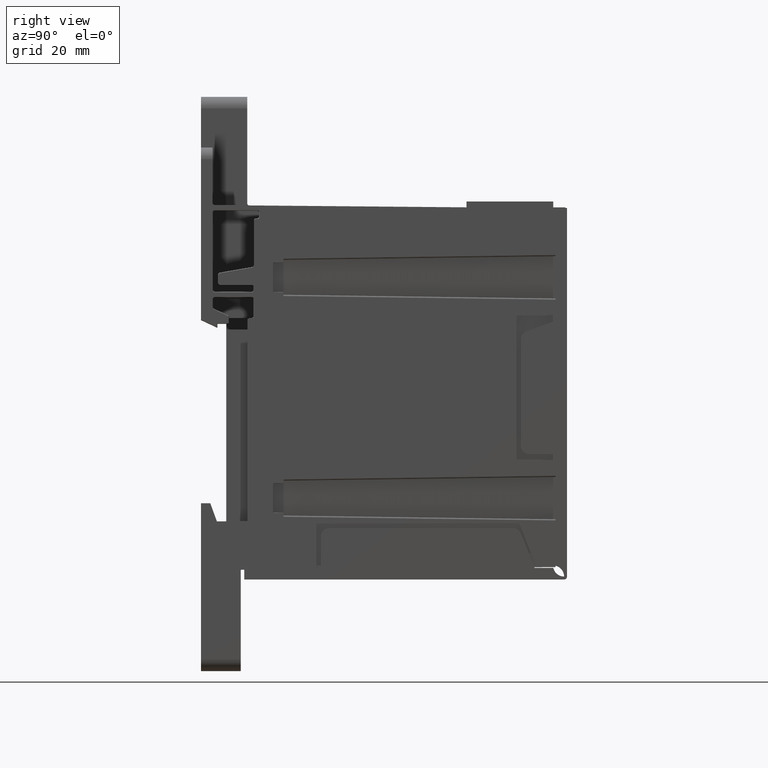
[diagram: clean part render]
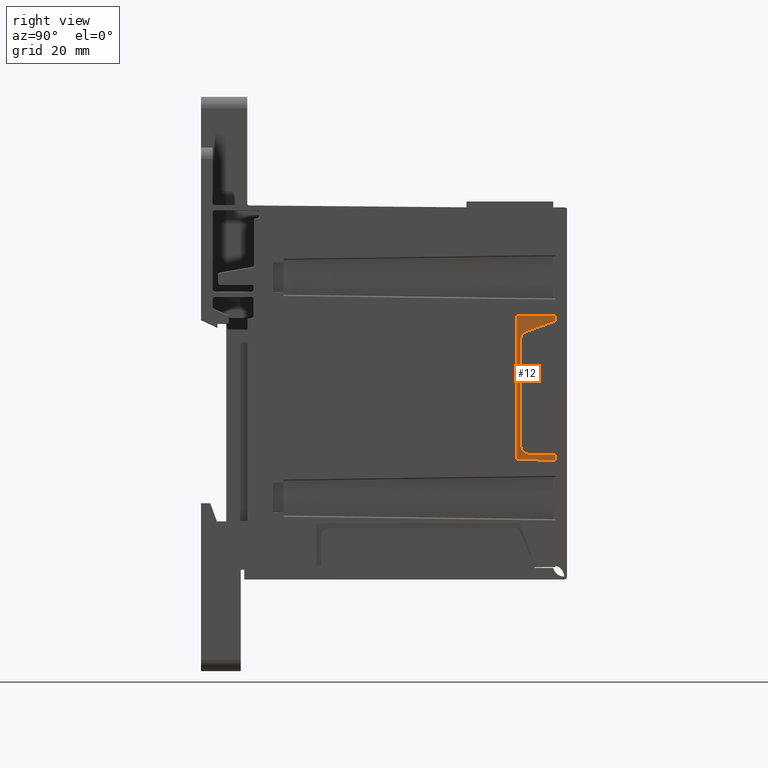
[diagram: same view with one face highlighted and labeled with its STEP entity id]
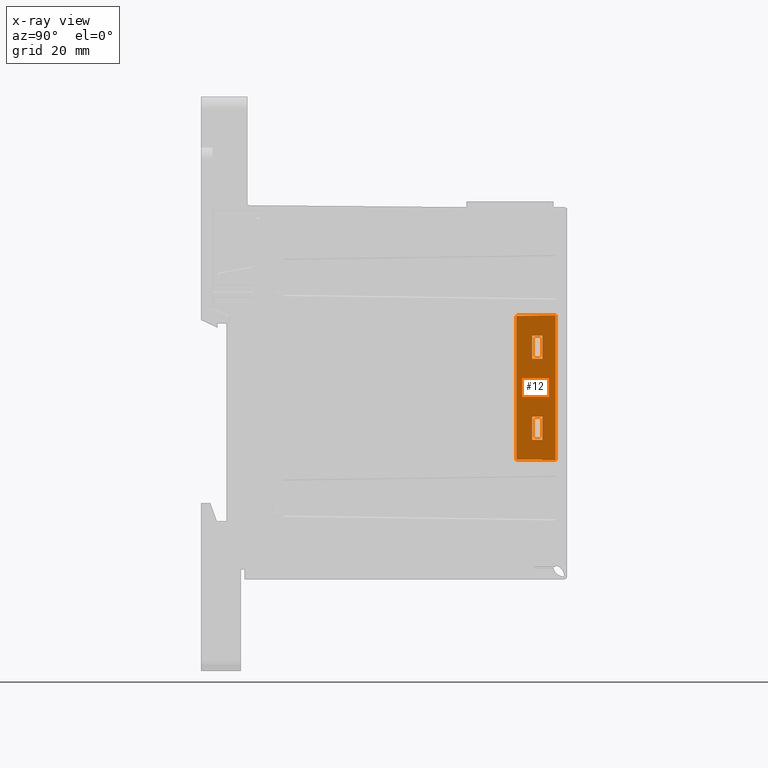
[diagram: x-ray of the same camera — body ghosted, the highlighted face saturated]
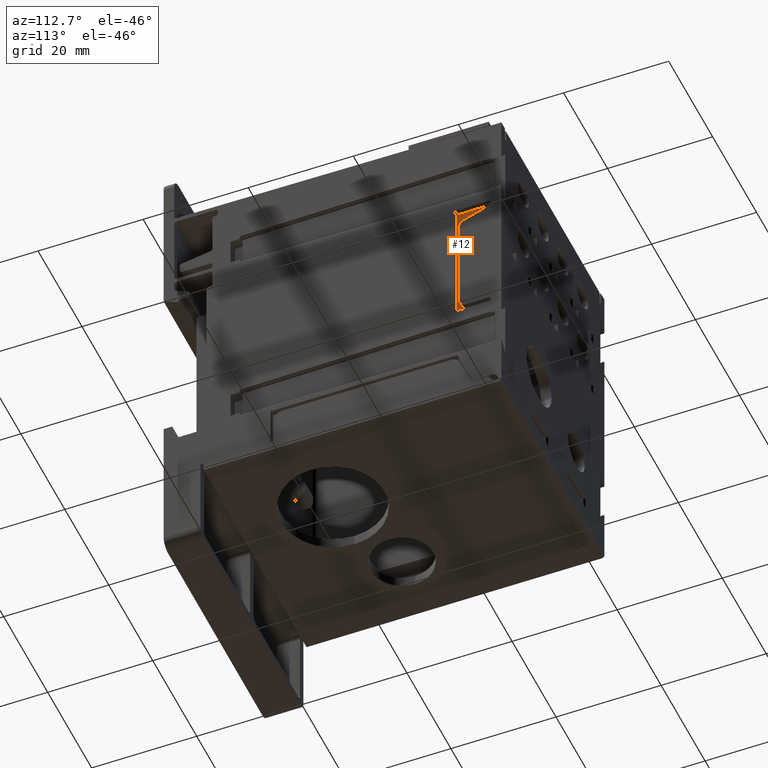
[diagram: same view with one face highlighted and labeled with its STEP entity id]
A machine part, right view. The second image highlights one B-rep face of the part: STEP entity #12.
The next image is the same camera in x-ray: the body ghosted, the highlighted face saturated — about 0% of this face is hidden behind the body in this view.
A second angle (auxiliary view) of the same face is appended — the face is thin or edge-on in the first view.
In plain terms, the highlighted planar face has unit normal (-1, -0, 0).
Its self-contained STEP definition (entity closure, byte-faithful):
#12 = ADVANCED_FACE ( 'NONE', ( #30810, #30814, #30811 ), #24606, .F. ) ;
#3062 = ORIENTED_EDGE ( 'NONE', *, *, #11718, .T. ) ;
#3080 = ORIENTED_EDGE ( 'NONE', *, *, #11716, .T. ) ;
#3081 = ORIENTED_EDGE ( 'NONE', *, *, #11726, .F. ) ;
#3082 = ORIENTED_EDGE ( 'NONE', *, *, #11719, .F. ) ;
#3160 = ORIENTED_EDGE ( 'NONE', *, *, #11721, .T. ) ;
#3176 = ORIENTED_EDGE ( 'NONE', *, *, #26342, .T. ) ;
#3193 = ORIENTED_EDGE ( 'NONE', *, *, #11732, .T. ) ;
#3206 = ORIENTED_EDGE ( 'NONE', *, *, #11724, .T. ) ;
#3210 = ORIENTED_EDGE ( 'NONE', *, *, #11710, .T. ) ;
#3212 = ORIENTED_EDGE ( 'NONE', *, *, #11723, .T. ) ;
#3213 = ORIENTED_EDGE ( 'NONE', *, *, #11701, .T. ) ;
#3217 = ORIENTED_EDGE ( 'NONE', *, *, #11733, .T. ) ;
#5743 = LINE ( 'NONE', #8370, #5768 ) ;
#5768 = VECTOR ( 'NONE', #8442, 39.37007874015748100 ) ;
#5771 = LINE ( 'NONE', #8450, #5776 ) ;
#5773 = LINE ( 'NONE', #8454, #5782 ) ;
#5776 = VECTOR ( 'NONE', #8460, 39.37007874015748100 ) ;
#5781 = LINE ( 'NONE', #8471, #5788 ) ;
#5782 = VECTOR ( 'NONE', #8474, 39.37007874015748100 ) ;
#5783 = LINE ( 'NONE', #8482, #5786 ) ;
#5786 = VECTOR ( 'NONE', #8486, 39.37007874015748100 ) ;
#5787 = LINE ( 'NONE', #8484, #5792 ) ;
#5788 = VECTOR ( 'NONE', #8488, 39.37007874015748100 ) ;
#5789 = LINE ( 'NONE', #8491, #5802 ) ;
#5792 = VECTOR ( 'NONE', #8497, 39.37007874015748100 ) ;
#5793 = LINE ( 'NONE', #8505, #5796 ) ;
#5795 = LINE ( 'NONE', #8510, #5798 ) ;
#5796 = VECTOR ( 'NONE', #8508, 39.37007874015748100 ) ;
#5798 = VECTOR ( 'NONE', #8513, 39.37007874015748100 ) ;
#5802 = VECTOR ( 'NONE', #8520, 39.37007874015748100 ) ;
#5811 = LINE ( 'NONE', #8546, #5814 ) ;
#5813 = LINE ( 'NONE', #8551, #5816 ) ;
#5814 = VECTOR ( 'NONE', #8549, 39.37007874015748100 ) ;
#5816 = VECTOR ( 'NONE', #8554, 39.37007874015748100 ) ;
#8370 = CARTESIAN_POINT ( 'NONE',  ( 0.8820412893233182700, 2.039999999999999600, -0.4959999999999993900 ) ) ;
#8442 = DIRECTION ( 'NONE',  ( -1.307550573896546100E-016, 2.304399515373206600E-018, -1.000000000000000000 ) ) ;
#8450 = CARTESIAN_POINT ( 'NONE',  ( 0.8820412893233182700, 1.969999999999999500, -0.4959999999999993900 ) ) ;
#8454 = CARTESIAN_POINT ( 'NONE',  ( 0.8820412893233181600, 1.859999999999999700, -0.4959999999999993900 ) ) ;
#8460 = DIRECTION ( 'NONE',  ( 1.307550573896546100E-016, -2.304399515373206600E-018, 1.000000000000000000 ) ) ;
#8471 = CARTESIAN_POINT ( 'NONE',  ( 0.8820412893233183800, 1.842689849635559000, 0.4956978502014707800 ) ) ;
#8474 = DIRECTION ( 'NONE',  ( -2.281990405294580400E-018, 0.9998476951563912700, -0.01745240643728354600 ) ) ;
#8482 = CARTESIAN_POINT ( 'NONE',  ( 0.8820412893233182700, 1.859999999999999700, -0.3600000000000002600 ) ) ;
#8484 = CARTESIAN_POINT ( 'NONE',  ( 0.8820412893233182700, 2.039999999999999600, -0.4959999999999993900 ) ) ;
#8486 = DIRECTION ( 'NONE',  ( -7.703719777548943400E-033, -1.000000000000000000, -2.304399515373239000E-018 ) ) ;
#8488 = DIRECTION ( 'NONE',  ( 2.281990405294595800E-018, 0.9998476951563912700, 0.01745240643728355300 ) ) ;
#8491 = CARTESIAN_POINT ( 'NONE',  ( 0.8820412893233182700, 1.859999999999999700, -0.4959999999999993900 ) ) ;
#8497 = DIRECTION ( 'NONE',  ( -1.307550573896546100E-016, 2.304399515373206600E-018, -1.000000000000000000 ) ) ;
#8505 = CARTESIAN_POINT ( 'NONE',  ( 0.8820412893233183800, 1.859999999999999700, 0.1999999999999998400 ) ) ;
#8508 = DIRECTION ( 'NONE',  ( -7.703719777548943400E-033, -1.000000000000000000, -2.304399515373239000E-018 ) ) ;
#8510 = CARTESIAN_POINT ( 'NONE',  ( 0.8820412893233183800, 1.859999999999999700, 0.3599999999999999300 ) ) ;
#8513 = DIRECTION ( 'NONE',  ( 7.703719777548943400E-033, 1.000000000000000000, 2.304399515373239000E-018 ) ) ;
#8520 = DIRECTION ( 'NONE',  ( 1.307550573896546400E-016, -2.304399515373206600E-018, 1.000000000000000000 ) ) ;
#8546 = CARTESIAN_POINT ( 'NONE',  ( 0.8820412893233182700, 1.969999999999999500, -0.4959999999999993900 ) ) ;
#8549 = DIRECTION ( 'NONE',  ( 1.307550573896546100E-016, -2.304399515373206600E-018, 1.000000000000000000 ) ) ;
#8551 = CARTESIAN_POINT ( 'NONE',  ( 0.8820412893233182700, 1.859999999999999700, -0.2000000000000001800 ) ) ;
#8554 = DIRECTION ( 'NONE',  ( 7.703719777548943400E-033, 1.000000000000000000, 2.304399515373239000E-018 ) ) ;
#11701 = EDGE_CURVE ( 'NONE', #25848, #25799, #5743, .T. ) ;
#11710 = EDGE_CURVE ( 'NONE', #25791, #25875, #5771, .T. ) ;
#11716 = EDGE_CURVE ( 'NONE', #25867, #25901, #5773, .T. ) ;
#11718 = EDGE_CURVE ( 'NONE', #25755, #25793, #5783, .T. ) ;
#11719 = EDGE_CURVE ( 'NONE', #25872, #25809, #5781, .T. ) ;
#11721 = EDGE_CURVE ( 'NONE', #25920, #25755, #5787, .T. ) ;
#11723 = EDGE_CURVE ( 'NONE', #25799, #25791, #5793, .T. ) ;
#11724 = EDGE_CURVE ( 'NONE', #25875, #25848, #5795, .T. ) ;
#11726 = EDGE_CURVE ( 'NONE', #25867, #25872, #5789, .T. ) ;
#11732 = EDGE_CURVE ( 'NONE', #25793, #25746, #5811, .T. ) ;
#11733 = EDGE_CURVE ( 'NONE', #25746, #25920, #5813, .T. ) ;
#13005 = LINE ( 'NONE', #14764, #13015 ) ;
#13015 = VECTOR ( 'NONE', #14772, 39.37007874015748100 ) ;
#14264 = CARTESIAN_POINT ( 'NONE',  ( 0.8820412893233182700, 1.969999999999999500, -0.1999999999999999600 ) ) ;
#14273 = CARTESIAN_POINT ( 'NONE',  ( 0.8820412893233182700, 2.039999999999999600, -0.3600000000000002600 ) ) ;
#14308 = CARTESIAN_POINT ( 'NONE',  ( 0.8820412893233183800, 1.969999999999999500, 0.1999999999999998400 ) ) ;
#14310 = CARTESIAN_POINT ( 'NONE',  ( 0.8820412893233182700, 1.969999999999999500, -0.3600000000000002600 ) ) ;
#14316 = CARTESIAN_POINT ( 'NONE',  ( 0.8820412893233183800, 2.039999999999999600, 0.1999999999999998400 ) ) ;
#14325 = CARTESIAN_POINT ( 'NONE',  ( 0.8820412893233183800, 2.129999999999999900, 0.5007128675306179400 ) ) ;
#14362 = CARTESIAN_POINT ( 'NONE',  ( 0.8820412893233183800, 2.039999999999999600, 0.3599999999999998800 ) ) ;
#14381 = CARTESIAN_POINT ( 'NONE',  ( 0.8820412893233182700, 1.859999999999999700, -0.4959999999999993900 ) ) ;
#14385 = CARTESIAN_POINT ( 'NONE',  ( 0.8820412893233183800, 1.859999999999999700, 0.4959999999999992200 ) ) ;
#14388 = CARTESIAN_POINT ( 'NONE',  ( 0.8820412893233183800, 1.969999999999999500, 0.3599999999999998800 ) ) ;
#14413 = CARTESIAN_POINT ( 'NONE',  ( 0.8820412893233182700, 2.129999999999999900, -0.5007128675306180600 ) ) ;
#14431 = CARTESIAN_POINT ( 'NONE',  ( 0.8820412893233182700, 2.039999999999999600, -0.2000000000000001800 ) ) ;
#14764 = CARTESIAN_POINT ( 'NONE',  ( 0.8820412893233182700, 2.129999999999999900, -0.4959999999999993900 ) ) ;
#14772 = DIRECTION ( 'NONE',  ( 1.307550573896546400E-016, -2.304399515373206600E-018, 1.000000000000000000 ) ) ;
#24606 = PLANE ( 'NONE',  #29216 ) ;
#24656 = DIRECTION ( 'NONE',  ( 1.307550573896546100E-016, -2.304399515373206600E-018, 1.000000000000000000 ) ) ;
#24672 = DIRECTION ( 'NONE',  ( -1.000000000000000000, -4.538357768533235100E-033, 1.307550573896546100E-016 ) ) ;
#24681 = CARTESIAN_POINT ( 'NONE',  ( 0.8820412893233182700, 1.859999999999999700, -0.4959999999999993900 ) ) ;
#25746 = VERTEX_POINT ( 'NONE', #14264 ) ;
#25755 = VERTEX_POINT ( 'NONE', #14273 ) ;
#25791 = VERTEX_POINT ( 'NONE', #14308 ) ;
#25793 = VERTEX_POINT ( 'NONE', #14310 ) ;
#25799 = VERTEX_POINT ( 'NONE', #14316 ) ;
#25809 = VERTEX_POINT ( 'NONE', #14325 ) ;
#25848 = VERTEX_POINT ( 'NONE', #14362 ) ;
#25867 = VERTEX_POINT ( 'NONE', #14381 ) ;
#25872 = VERTEX_POINT ( 'NONE', #14385 ) ;
#25875 = VERTEX_POINT ( 'NONE', #14388 ) ;
#25901 = VERTEX_POINT ( 'NONE', #14413 ) ;
#25920 = VERTEX_POINT ( 'NONE', #14431 ) ;
#26342 = EDGE_CURVE ( 'NONE', #25901, #25809, #13005, .T. ) ;
#29216 = AXIS2_PLACEMENT_3D ( 'NONE', #24681, #24672, #24656 ) ;
#30405 = EDGE_LOOP ( 'NONE', ( #3176, #3082, #3081, #3080 ) ) ;
#30508 = EDGE_LOOP ( 'NONE', ( #3160, #3062, #3193, #3217 ) ) ;
#30576 = EDGE_LOOP ( 'NONE', ( #3206, #3213, #3212, #3210 ) ) ;
#30810 = FACE_BOUND ( 'NONE', #30576, .T. ) ;
#30811 = FACE_OUTER_BOUND ( 'NONE', #30405, .T. ) ;
#30814 = FACE_BOUND ( 'NONE', #30508, .T. ) ;